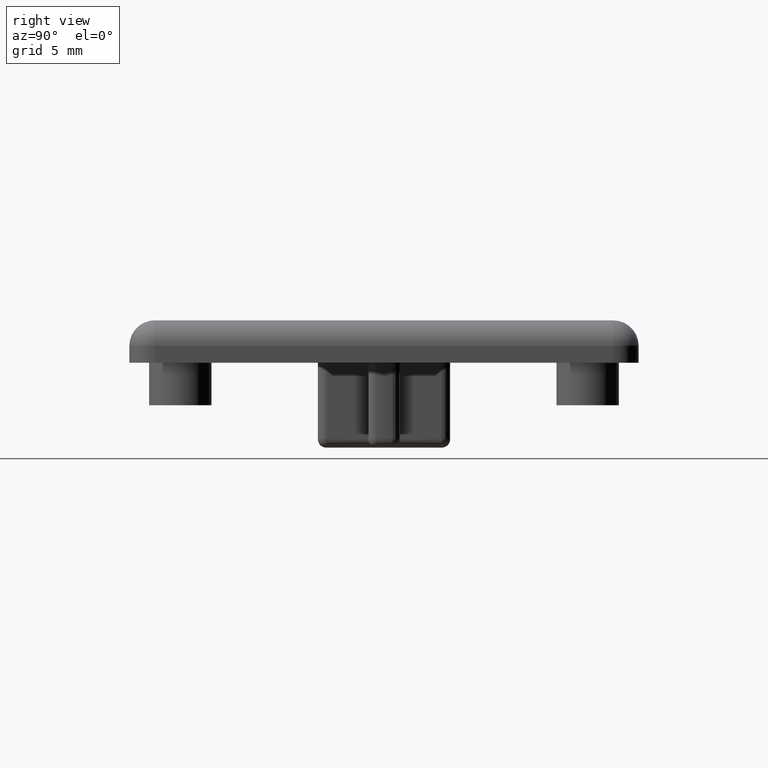
[diagram: clean part render]
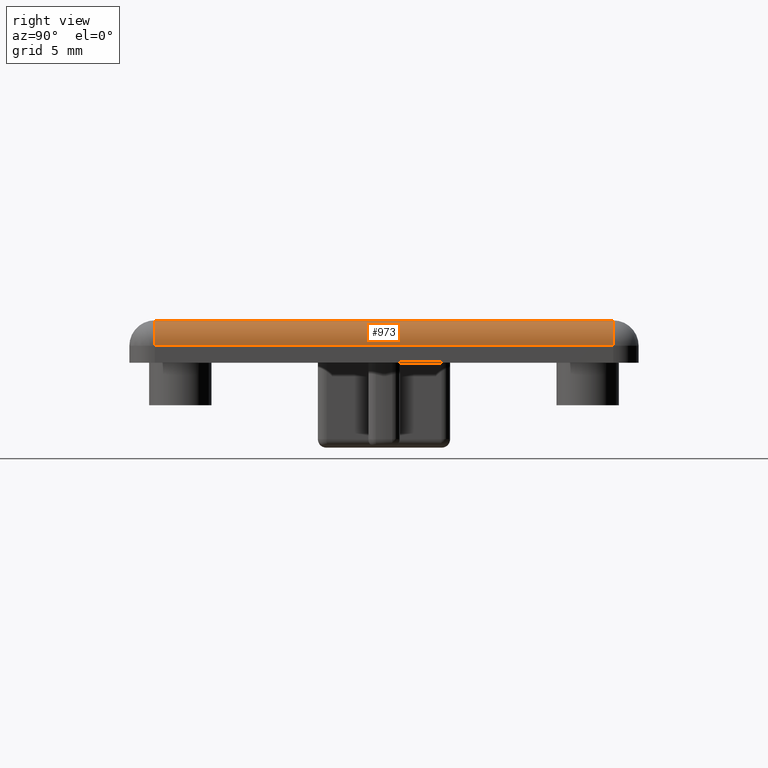
[diagram: same view with one face highlighted and labeled with its STEP entity id]
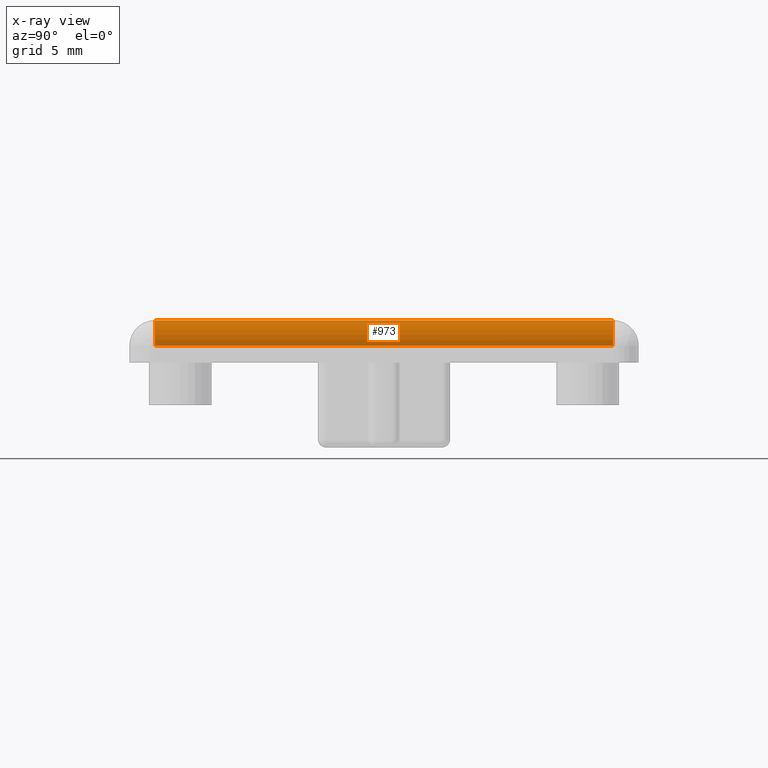
[diagram: x-ray of the same camera — body ghosted, the highlighted face saturated]
A machine part, right view. The second image highlights one B-rep face of the part: STEP entity #973.
The next image is the same camera in x-ray: the body ghosted, the highlighted face saturated — about 0% of this face is hidden behind the body in this view.
In plain terms, the highlighted cylindrical surface (edge-blend (fillet) strip) has radius 1.5 mm, axis along (0, 1, 0).
Its self-contained STEP definition (entity closure, byte-faithful):
#105=LINE('',#1743,#172);
#106=LINE('',#1744,#173);
#172=VECTOR('',#1454,10.);
#173=VECTOR('',#1455,10.);
#209=CYLINDRICAL_SURFACE('',#1128,1.5);
#268=FACE_OUTER_BOUND('',#333,.T.);
#333=EDGE_LOOP('',(#845,#846,#847,#848));
#397=CIRCLE('',#1105,1.5);
#403=CIRCLE('',#1116,1.5);
#471=VERTEX_POINT('',#1687);
#472=VERTEX_POINT('',#1689);
#480=VERTEX_POINT('',#1715);
#481=VERTEX_POINT('',#1716);
#594=EDGE_CURVE('',#471,#472,#397,.F.);
#606=EDGE_CURVE('',#480,#481,#403,.F.);
#620=EDGE_CURVE('',#481,#471,#105,.T.);
#621=EDGE_CURVE('',#472,#480,#106,.T.);
#845=ORIENTED_EDGE('',*,*,#606,.T.);
#846=ORIENTED_EDGE('',*,*,#620,.T.);
#847=ORIENTED_EDGE('',*,*,#594,.T.);
#848=ORIENTED_EDGE('',*,*,#621,.T.);
#973=ADVANCED_FACE('',(#268),#209,.T.);
#1105=AXIS2_PLACEMENT_3D('',#1691,#1394,#1395);
#1116=AXIS2_PLACEMENT_3D('',#1717,#1422,#1423);
#1128=AXIS2_PLACEMENT_3D('',#1742,#1452,#1453);
#1394=DIRECTION('center_axis',(0.,-1.,0.));
#1395=DIRECTION('ref_axis',(0.,0.,1.));
#1422=DIRECTION('center_axis',(0.,1.,-2.96059473233375E-15));
#1423=DIRECTION('ref_axis',(1.,0.,0.));
#1452=DIRECTION('center_axis',(0.,1.,0.));
#1453=DIRECTION('ref_axis',(0.707106781186547,0.,0.707106781186548));
#1454=DIRECTION('',(0.,-1.,0.));
#1455=DIRECTION('',(0.,1.,0.));
#1687=CARTESIAN_POINT('',(13.5,-13.5,2.5));
#1689=CARTESIAN_POINT('',(15.,-13.5,1.));
#1691=CARTESIAN_POINT('Origin',(13.5,-13.5,1.));
#1715=CARTESIAN_POINT('',(15.,13.5,1.));
#1716=CARTESIAN_POINT('',(13.5,13.5,2.5));
#1717=CARTESIAN_POINT('Origin',(13.5,13.5,1.));
#1742=CARTESIAN_POINT('Origin',(13.5,-8.82361806591142,1.));
#1743=CARTESIAN_POINT('',(13.5,-8.82361806591142,2.5));
#1744=CARTESIAN_POINT('',(15.,-8.82361806591142,1.));